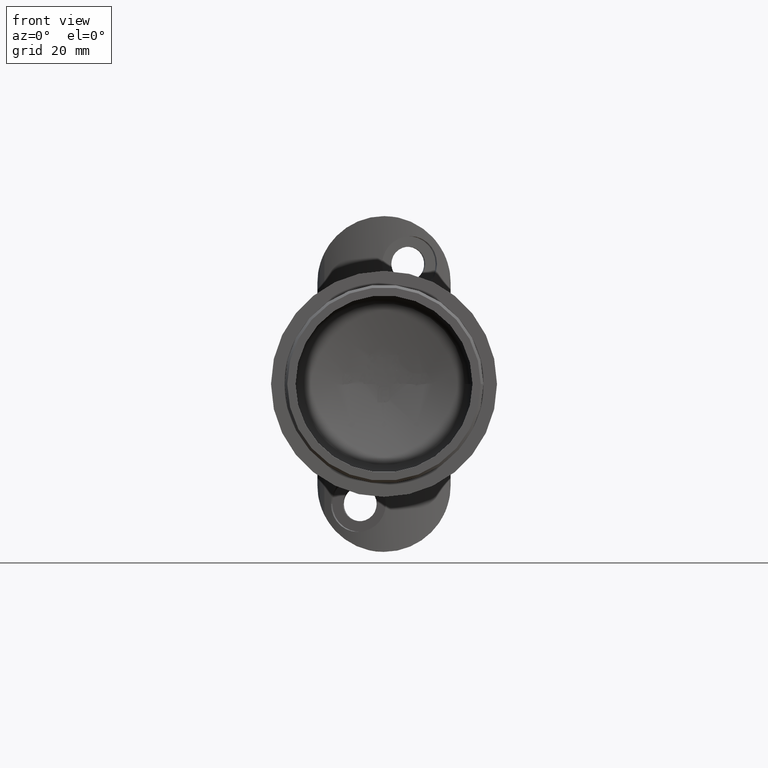
[diagram: clean part render]
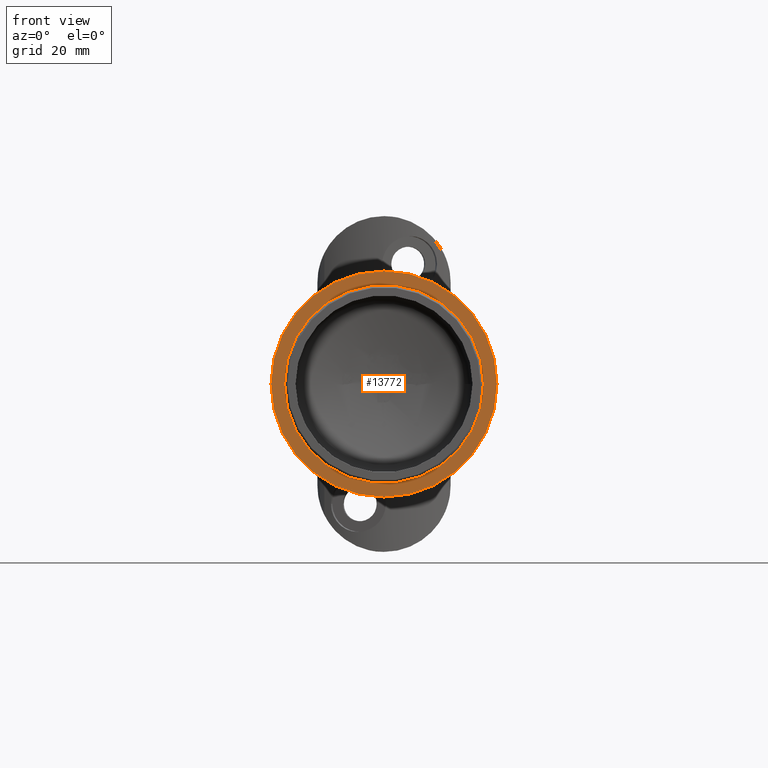
[diagram: same view with one face highlighted and labeled with its STEP entity id]
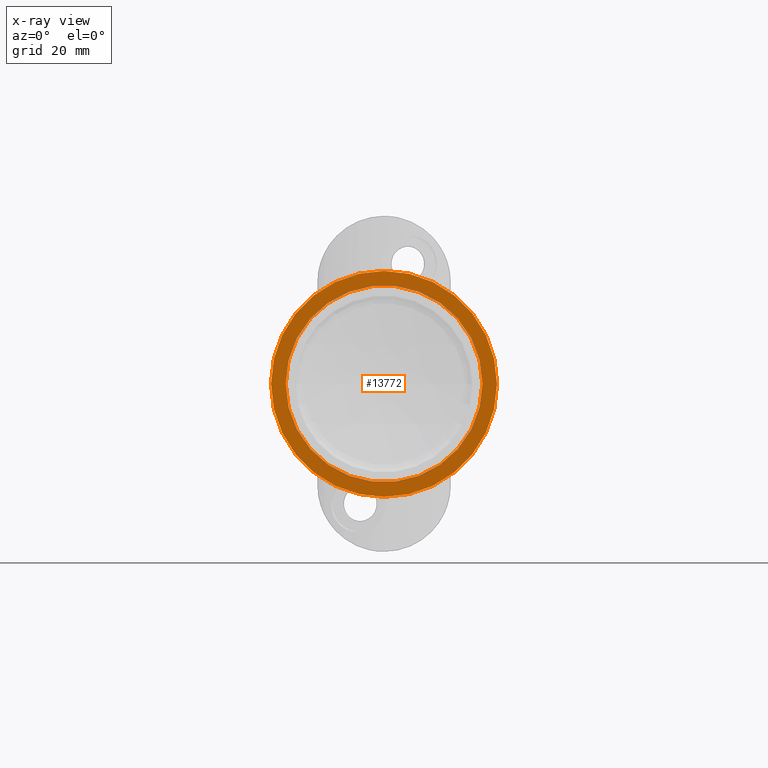
[diagram: x-ray of the same camera — body ghosted, the highlighted face saturated]
A machine part, front view. The second image highlights one B-rep face of the part: STEP entity #13772.
The next image is the same camera in x-ray: the body ghosted, the highlighted face saturated — about 7% of this face is hidden behind the body in this view.
In plain terms, the highlighted planar face has unit normal (0, -1, -0).
Its self-contained STEP definition (entity closure, byte-faithful):
#1011 = CARTESIAN_POINT ( 'NONE',  ( 21.19999999999999929, 9.946330764574522650E-16, 0.000000000000000000 ) ) ;
#1937 = AXIS2_PLACEMENT_3D ( 'NONE', #16937, #17187, #17103 ) ;
#2087 = ORIENTED_EDGE ( 'NONE', *, *, #20227, .T. ) ;
#3362 = AXIS2_PLACEMENT_3D ( 'NONE', #8915, #14721, #18639 ) ;
#3407 = CARTESIAN_POINT ( 'NONE',  ( 7.070310498249596747E-15, -8.673617379884035472E-16, 0.000000000000000000 ) ) ;
#5368 = VERTEX_POINT ( 'NONE', #1011 ) ;
#5434 = DIRECTION ( 'NONE',  ( 1.000000000000000000, 8.782994407763472743E-17, 0.000000000000000000 ) ) ;
#6625 = CIRCLE ( 'NONE', #1937, 18.44999999999999574 ) ;
#8915 = CARTESIAN_POINT ( 'NONE',  ( 21.19999999999999929, 1.448439205478517177E-15, 0.000000000000000000 ) ) ;
#10343 = FACE_BOUND ( 'NONE', #23420, .T. ) ;
#10823 = AXIS2_PLACEMENT_3D ( 'NONE', #3407, #17479, #5434 ) ;
#11048 = VERTEX_POINT ( 'NONE', #15069 ) ;
#13772 = ADVANCED_FACE ( 'NONE', ( #23824, #10343 ), #18805, .T. ) ;
#14457 = EDGE_LOOP ( 'NONE', ( #2087 ) ) ;
#14721 = DIRECTION ( 'NONE',  ( 8.782994407763473975E-17, -1.000000000000000000, -0.000000000000000000 ) ) ;
#15069 = CARTESIAN_POINT ( 'NONE',  ( 18.45000000000000284, 1.620462468232360377E-15, 0.000000000000000000 ) ) ;
#16569 = ORIENTED_EDGE ( 'NONE', *, *, #21715, .F. ) ;
#16937 = CARTESIAN_POINT ( 'NONE',  ( 7.070310498249596747E-15, 0.000000000000000000, 0.000000000000000000 ) ) ;
#17054 = CIRCLE ( 'NONE', #10823, 21.19999999999999218 ) ;
#17103 = DIRECTION ( 'NONE',  ( 1.000000000000000000, 8.782994407763472743E-17, 0.000000000000000000 ) ) ;
#17187 = DIRECTION ( 'NONE',  ( 8.782994407763473975E-17, -1.000000000000000000, -0.000000000000000000 ) ) ;
#17479 = DIRECTION ( 'NONE',  ( 8.782994407763473975E-17, -1.000000000000000000, -0.000000000000000000 ) ) ;
#18639 = DIRECTION ( 'NONE',  ( 1.000000000000000000, 8.782994407763473975E-17, 0.000000000000000000 ) ) ;
#18805 = PLANE ( 'NONE',  #3362 ) ;
#20227 = EDGE_CURVE ( 'NONE', #5368, #5368, #17054, .T. ) ;
#21715 = EDGE_CURVE ( 'NONE', #11048, #11048, #6625, .T. ) ;
#23420 = EDGE_LOOP ( 'NONE', ( #16569 ) ) ;
#23824 = FACE_OUTER_BOUND ( 'NONE', #14457, .T. ) ;